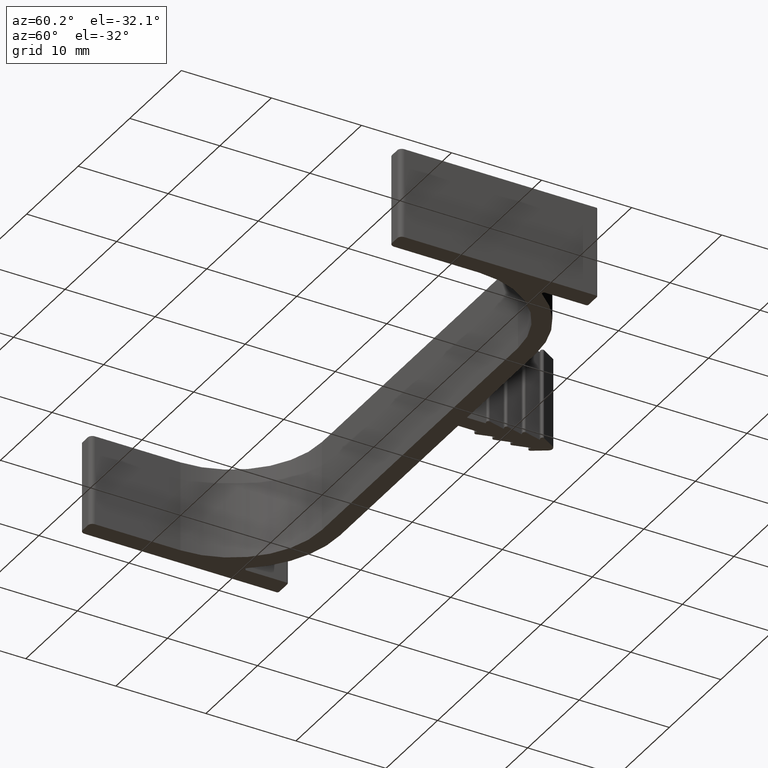
[diagram: clean part render]
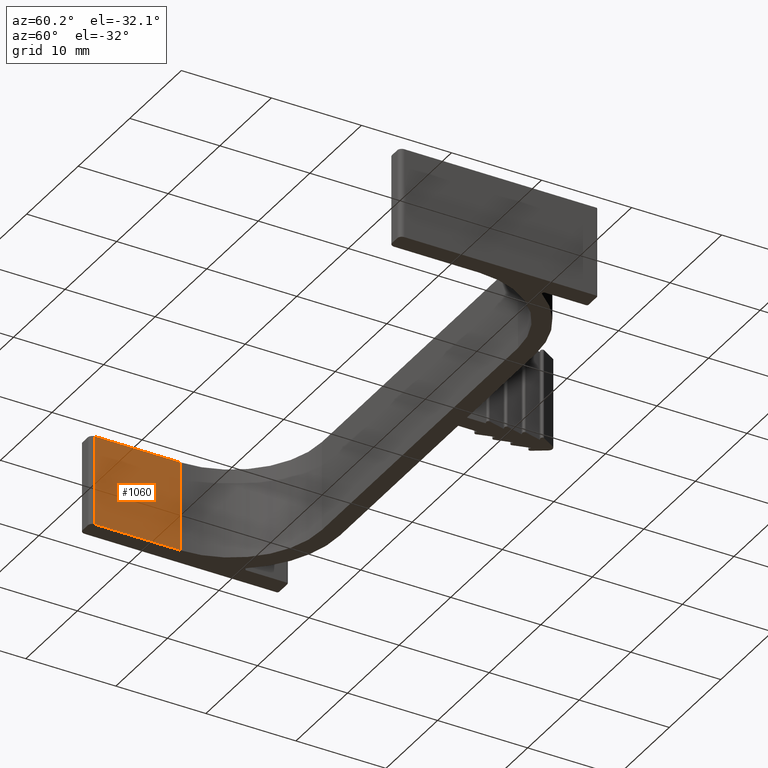
[diagram: same view with one face highlighted and labeled with its STEP entity id]
A machine part, auxiliary view. The second image highlights one B-rep face of the part: STEP entity #1060.
In plain terms, the highlighted planar face has unit normal (-1, 0, 0).
Its self-contained STEP definition (entity closure, byte-faithful):
#17=PLANE('',#1144);
#53=FACE_OUTER_BOUND('',#109,.T.);
#109=EDGE_LOOP('',(#778,#779,#780,#781));
#188=LINE('',#1636,#304);
#197=LINE('',#1666,#313);
#198=LINE('',#1669,#314);
#199=LINE('',#1670,#315);
#304=VECTOR('',#1287,9.49999999999999);
#313=VECTOR('',#1316,10.);
#314=VECTOR('',#1319,10.);
#315=VECTOR('',#1320,9.49999999999999);
#485=VERTEX_POINT('',#1633);
#486=VERTEX_POINT('',#1635);
#496=VERTEX_POINT('',#1662);
#498=VERTEX_POINT('',#1668);
#593=EDGE_CURVE('',#485,#486,#188,.T.);
#609=EDGE_CURVE('',#486,#496,#197,.T.);
#610=EDGE_CURVE('',#485,#498,#198,.T.);
#611=EDGE_CURVE('',#496,#498,#199,.T.);
#778=ORIENTED_EDGE('',*,*,#609,.F.);
#779=ORIENTED_EDGE('',*,*,#593,.F.);
#780=ORIENTED_EDGE('',*,*,#610,.T.);
#781=ORIENTED_EDGE('',*,*,#611,.F.);
#1060=ADVANCED_FACE('',(#53),#17,.F.);
#1144=AXIS2_PLACEMENT_3D('',#1667,#1317,#1318);
#1287=DIRECTION('',(0.,-1.,0.));
#1316=DIRECTION('',(0.,0.,1.));
#1317=DIRECTION('center_axis',(-1.,0.,0.));
#1318=DIRECTION('ref_axis',(0.,0.,1.));
#1319=DIRECTION('',(0.,0.,1.));
#1320=DIRECTION('',(0.,1.,0.));
#1633=CARTESIAN_POINT('',(-37.,-6.00000000000001,-5.));
#1635=CARTESIAN_POINT('',(-37.,-15.5,-5.));
#1636=CARTESIAN_POINT('',(-37.,3.99999999999999,-5.));
#1662=CARTESIAN_POINT('',(-37.,-15.5,5.));
#1666=CARTESIAN_POINT('',(-37.,-15.5,0.));
#1667=CARTESIAN_POINT('Origin',(-37.,-16.,0.));
#1668=CARTESIAN_POINT('',(-37.,-6.00000000000001,5.));
#1669=CARTESIAN_POINT('',(-37.,-6.00000000000001,0.));
#1670=CARTESIAN_POINT('',(-37.,3.99999999999999,5.));